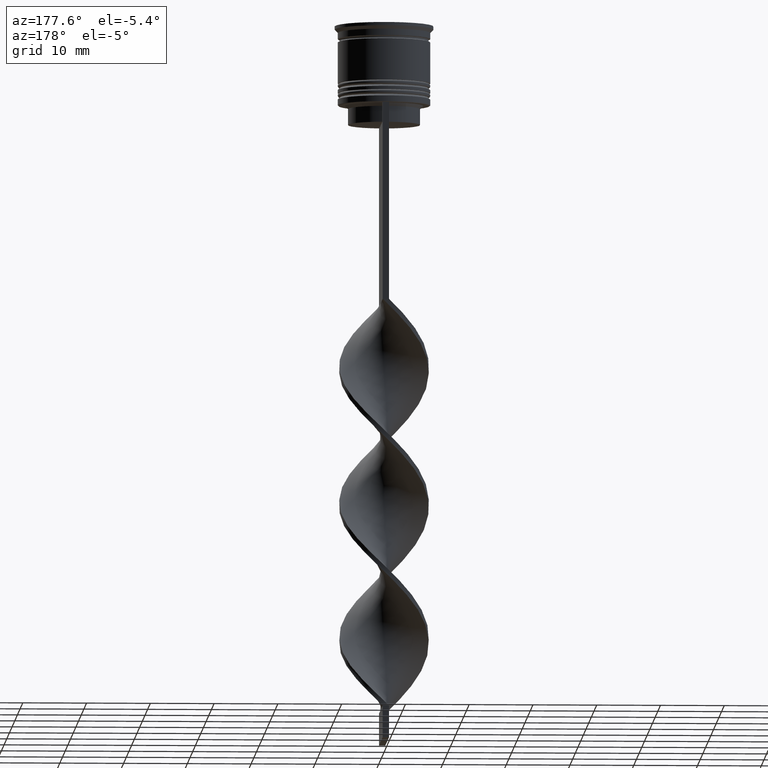
[diagram: clean part render]
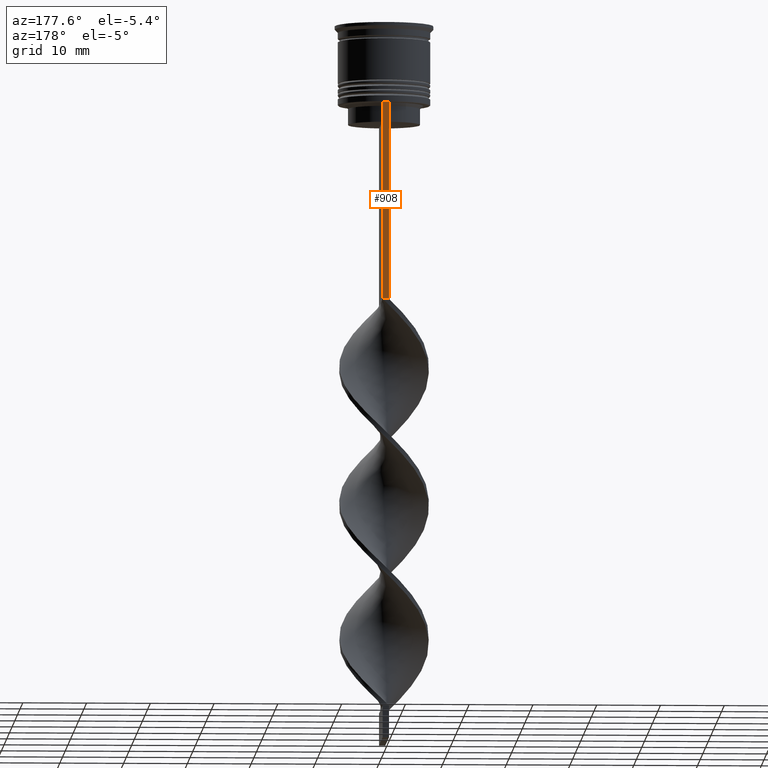
[diagram: same view with one face highlighted and labeled with its STEP entity id]
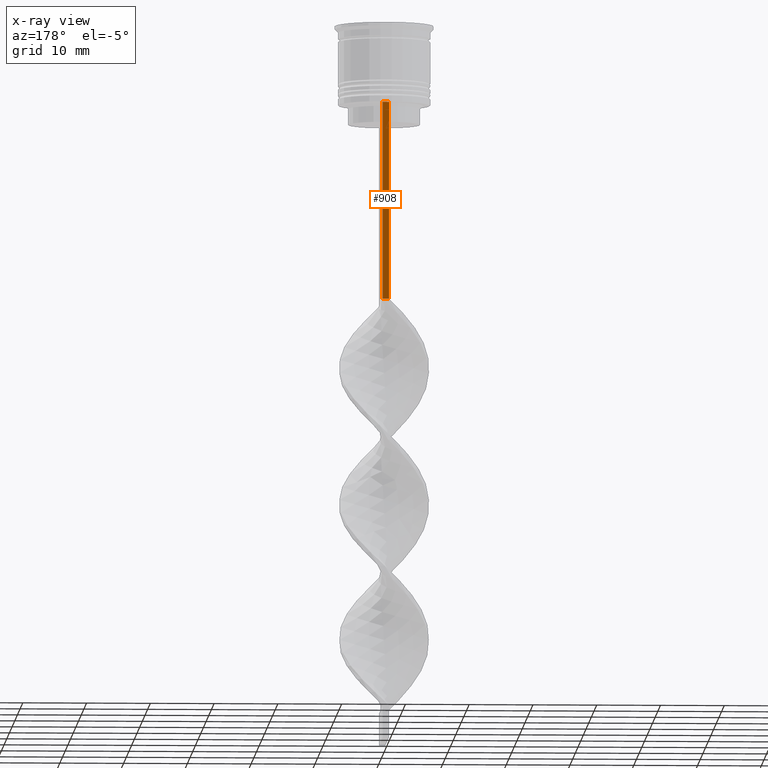
[diagram: x-ray of the same camera — body ghosted, the highlighted face saturated]
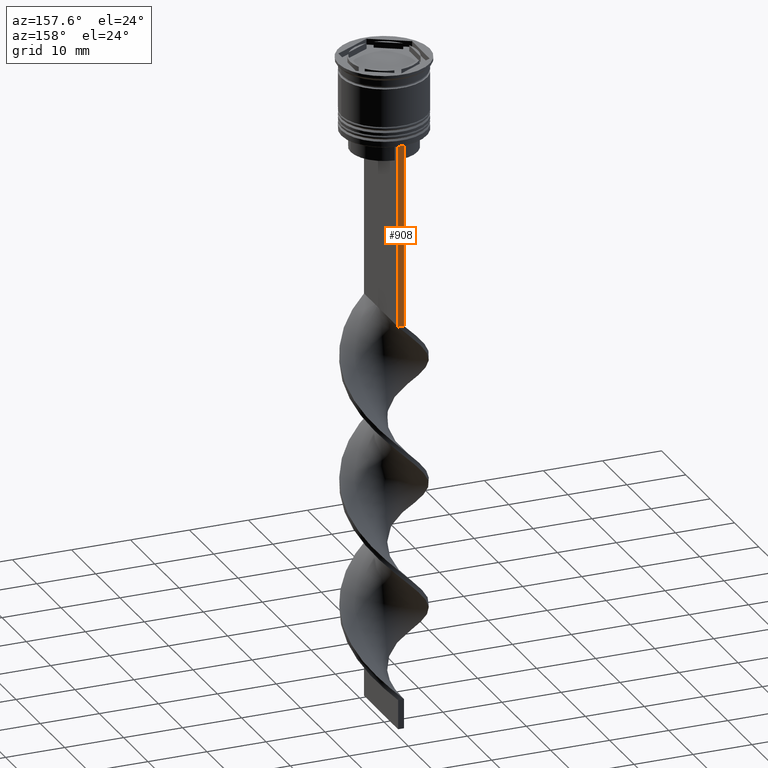
[diagram: same view with one face highlighted and labeled with its STEP entity id]
A machine part, auxiliary view. The second image highlights one B-rep face of the part: STEP entity #908.
The next image is the same camera in x-ray: the body ghosted, the highlighted face saturated — about 0% of this face is hidden behind the body in this view.
A second angle (auxiliary view) of the same face is appended — the face is thin or edge-on in the first view.
In plain terms, the highlighted planar face has unit normal (0, -1, -0).
Its self-contained STEP definition (entity closure, byte-faithful):
#122 = CARTESIAN_POINT ( 'NONE',  ( 0.5000000000000000000, 7.000000000000002665, 1.535668847618198329 ) ) ;
#239 = VECTOR ( 'NONE', #900, 1000.000000000000000 ) ;
#253 = EDGE_CURVE ( 'NONE', #1728, #899, #1480, .T. ) ;
#338 = CARTESIAN_POINT ( 'NONE',  ( -0.5000000000000000000, 7.000000000000002665, 1.535668847618198329 ) ) ;
#380 = DIRECTION ( 'NONE',  ( 0.000000000000000000, -1.000000000000000000, -0.000000000000000000 ) ) ;
#601 = ORIENTED_EDGE ( 'NONE', *, *, #253, .T. ) ;
#676 = ORIENTED_EDGE ( 'NONE', *, *, #2756, .F. ) ;
#760 = DIRECTION ( 'NONE',  ( 1.000000000000000000, 0.000000000000000000, 0.000000000000000000 ) ) ;
#899 = VERTEX_POINT ( 'NONE', #1911 ) ;
#900 = DIRECTION ( 'NONE',  ( 0.000000000000000000, 0.000000000000000000, -1.000000000000000000 ) ) ;
#908 = ADVANCED_FACE ( 'NONE', ( #2735 ), #2852, .F. ) ;
#1248 = AXIS2_PLACEMENT_3D ( 'NONE', #122, #380, #1495 ) ;
#1420 = VECTOR ( 'NONE', #1472, 1000.000000000000000 ) ;
#1472 = DIRECTION ( 'NONE',  ( -1.000000000000000000, 0.000000000000000000, 0.000000000000000000 ) ) ;
#1480 = LINE ( 'NONE', #2321, #1594 ) ;
#1495 = DIRECTION ( 'NONE',  ( 0.000000000000000000, 0.000000000000000000, -1.000000000000000000 ) ) ;
#1515 = EDGE_CURVE ( 'NONE', #899, #1910, #2586, .T. ) ;
#1594 = VECTOR ( 'NONE', #1734, 1000.000000000000000 ) ;
#1657 = VECTOR ( 'NONE', #760, 1000.000000000000000 ) ;
#1728 = VERTEX_POINT ( 'NONE', #2137 ) ;
#1734 = DIRECTION ( 'NONE',  ( 0.000000000000000000, 0.000000000000000000, -1.000000000000000000 ) ) ;
#1910 = VERTEX_POINT ( 'NONE', #3114 ) ;
#1911 = CARTESIAN_POINT ( 'NONE',  ( 0.5000000000000000000, 7.000000000000002665, -43.50000000000000000 ) ) ;
#1932 = EDGE_LOOP ( 'NONE', ( #676, #2769, #601, #2192 ) ) ;
#2023 = VERTEX_POINT ( 'NONE', #3317 ) ;
#2031 = EDGE_CURVE ( 'NONE', #2023, #1728, #3449, .T. ) ;
#2137 = CARTESIAN_POINT ( 'NONE',  ( 0.5000000000000000000, 7.000000000000002665, -12.50000000000000000 ) ) ;
#2192 = ORIENTED_EDGE ( 'NONE', *, *, #1515, .T. ) ;
#2321 = CARTESIAN_POINT ( 'NONE',  ( 0.5000000000000000000, 7.000000000000002665, 1.535668847618198329 ) ) ;
#2369 = CARTESIAN_POINT ( 'NONE',  ( 0.5000000000000000000, 7.000000000000002665, -12.50000000000000000 ) ) ;
#2586 = LINE ( 'NONE', #3375, #1420 ) ;
#2735 = FACE_OUTER_BOUND ( 'NONE', #1932, .T. ) ;
#2756 = EDGE_CURVE ( 'NONE', #2023, #1910, #3020, .T. ) ;
#2769 = ORIENTED_EDGE ( 'NONE', *, *, #2031, .T. ) ;
#2852 = PLANE ( 'NONE',  #1248 ) ;
#3020 = LINE ( 'NONE', #338, #239 ) ;
#3114 = CARTESIAN_POINT ( 'NONE',  ( -0.5000000000000000000, 7.000000000000002665, -43.50000000000000000 ) ) ;
#3317 = CARTESIAN_POINT ( 'NONE',  ( -0.5000000000000000000, 7.000000000000002665, -12.50000000000000000 ) ) ;
#3375 = CARTESIAN_POINT ( 'NONE',  ( 0.5000000000000000000, 7.000000000000002665, -43.50000000000000000 ) ) ;
#3449 = LINE ( 'NONE', #2369, #1657 ) ;